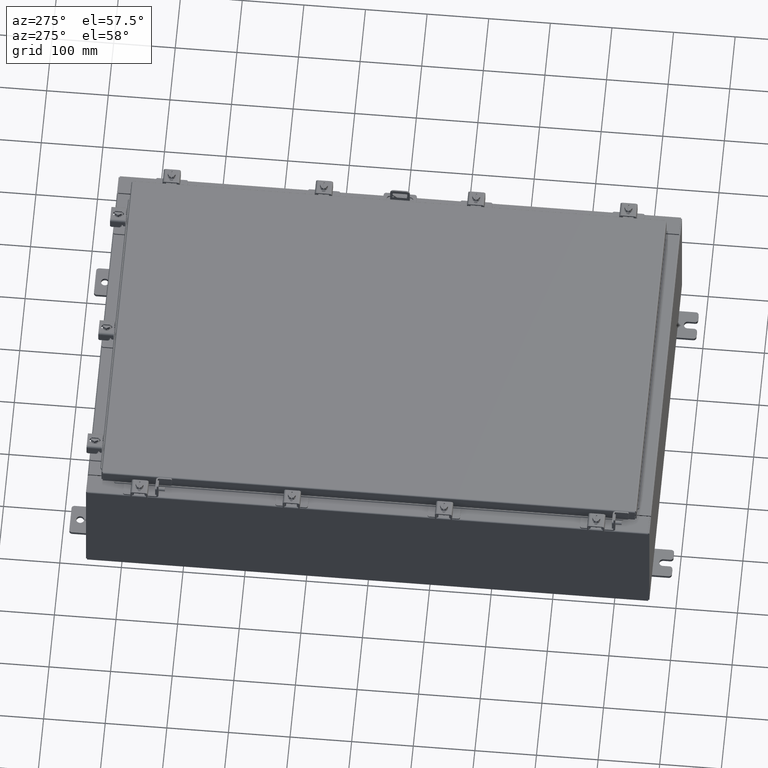
[diagram: clean part render]
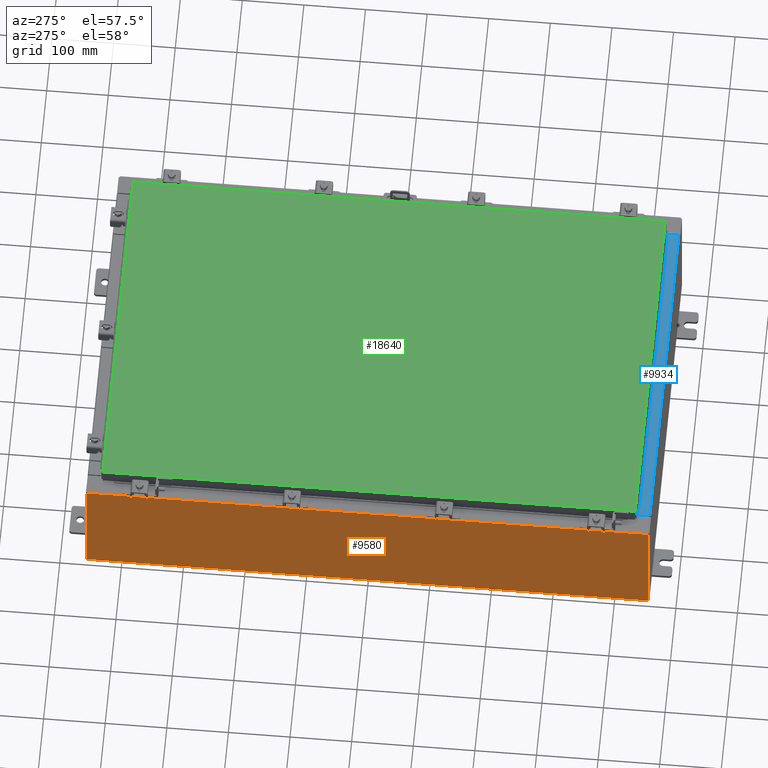
[diagram: same view with three faces highlighted in distinct colors, each labeled with its STEP entity id]
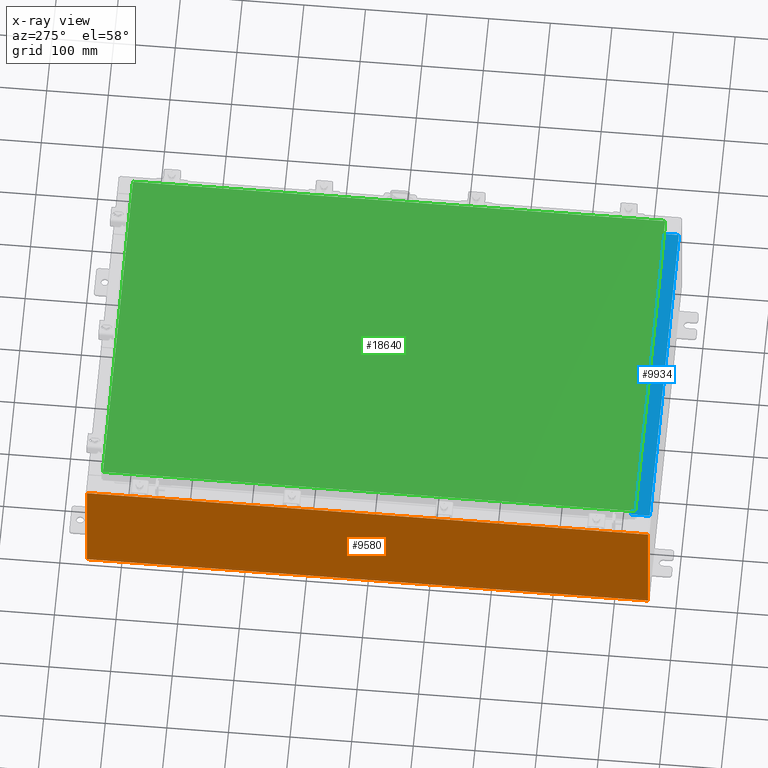
[diagram: x-ray of the same camera — body ghosted, the three highlighted faces saturated]
A machine part, auxiliary view with three faces highlighted in distinct colors.
The next image is the same camera in x-ray (body ghosted, the three faces saturated) — at least one of them is partly hidden behind the body in this view.
Their STEP definitions:

[orange] entity #9580 — the highlighted planar face has unit normal (1, 0, 0).
#1332 = LINE ( 'NONE', #18045, #19889 ) ;
#1352 = VERTEX_POINT ( 'NONE', #13521 ) ;
#1518 = CARTESIAN_POINT ( 'NONE',  ( -12.00000000000000200, 17.92529999999999600, 0.01299999999999983600 ) ) ;
#2291 = EDGE_CURVE ( 'NONE', #3297, #1352, #1332, .T. ) ;
#3007 = VECTOR ( 'NONE', #22389, 39.37007874015748100 ) ;
#3297 = VERTEX_POINT ( 'NONE', #10470 ) ;
#4617 = CARTESIAN_POINT ( 'NONE',  ( -12.00000000000000200, -17.92530000000000400, 0.01299999999999984700 ) ) ;
#5382 = EDGE_CURVE ( 'NONE', #13980, #18665, #23197, .T. ) ;
#6273 = VECTOR ( 'NONE', #11974, 39.37007874015748100 ) ;
#6885 = CARTESIAN_POINT ( 'NONE',  ( -12.00000000000000200, 0.0000000000000000000, -4.327932773236201900E-014 ) ) ;
#8705 = DIRECTION ( 'NONE',  ( 1.000000000000000000, 0.0000000000000000000, 3.584876173029202900E-015 ) ) ;
#9580 = ADVANCED_FACE ( 'NONE', ( #11149 ), #17740, .F. ) ;
#9755 = CARTESIAN_POINT ( 'NONE',  ( -12.00000000000000200, -17.92530000000000400, -4.327932773236201900E-014 ) ) ;
#10464 = LINE ( 'NONE', #22811, #6273 ) ;
#10470 = CARTESIAN_POINT ( 'NONE',  ( -12.00000000000003000, -17.92530000000000400, 7.837599999999999200 ) ) ;
#10954 = ORIENTED_EDGE ( 'NONE', *, *, #2291, .T. ) ;
#11149 = FACE_OUTER_BOUND ( 'NONE', #12030, .T. ) ;
#11548 = CARTESIAN_POINT ( 'NONE',  ( -12.00000000000000200, 17.92529999999999600, 0.01299999999999984700 ) ) ;
#11974 = DIRECTION ( 'NONE',  ( 3.584876173029202900E-015, 0.0000000000000000000, -1.000000000000000000 ) ) ;
#12030 = EDGE_LOOP ( 'NONE', ( #10954, #13000, #21645, #19859 ) ) ;
#12513 = AXIS2_PLACEMENT_3D ( 'NONE', #6885, #8705, #21328 ) ;
#13000 = ORIENTED_EDGE ( 'NONE', *, *, #14059, .T. ) ;
#13521 = CARTESIAN_POINT ( 'NONE',  ( -12.00000000000003000, 17.92529999999999600, 7.837599999999999200 ) ) ;
#13980 = VERTEX_POINT ( 'NONE', #4617 ) ;
#14059 = EDGE_CURVE ( 'NONE', #1352, #18665, #10464, .T. ) ;
#16404 = DIRECTION ( 'NONE',  ( 0.0000000000000000000, 1.000000000000000000, 0.0000000000000000000 ) ) ;
#17740 = PLANE ( 'NONE',  #12513 ) ;
#18045 = CARTESIAN_POINT ( 'NONE',  ( -12.00000000000003000, -17.92530000000000400, 7.837599999999999200 ) ) ;
#18115 = DIRECTION ( 'NONE',  ( -0.0000000000000000000, 1.000000000000000000, -0.0000000000000000000 ) ) ;
#18439 = VECTOR ( 'NONE', #18115, 39.37007874015748100 ) ;
#18665 = VERTEX_POINT ( 'NONE', #1518 ) ;
#19133 = EDGE_CURVE ( 'NONE', #13980, #3297, #22141, .T. ) ;
#19859 = ORIENTED_EDGE ( 'NONE', *, *, #19133, .T. ) ;
#19889 = VECTOR ( 'NONE', #16404, 39.37007874015748100 ) ;
#21328 = DIRECTION ( 'NONE',  ( 3.584876173029202900E-015, 0.0000000000000000000, -1.000000000000000000 ) ) ;
#21645 = ORIENTED_EDGE ( 'NONE', *, *, #5382, .F. ) ;
#22141 = LINE ( 'NONE', #9755, #3007 ) ;
#22389 = DIRECTION ( 'NONE',  ( -3.584876173029202900E-015, 0.0000000000000000000, 1.000000000000000000 ) ) ;
#22811 = CARTESIAN_POINT ( 'NONE',  ( -12.00000000000000200, 17.92529999999999600, -4.327932773236201900E-014 ) ) ;
#23197 = LINE ( 'NONE', #11548, #18439 ) ;

[blue] entity #9934 — the highlighted planar face has unit normal (-0, -0, 1).
#249 = FACE_OUTER_BOUND ( 'NONE', #6206, .T. ) ;
#538 = EDGE_CURVE ( 'NONE', #13210, #15963, #20790, .T. ) ;
#855 = AXIS2_PLACEMENT_3D ( 'NONE', #4323, #22343, #11509 ) ;
#1408 = CARTESIAN_POINT ( 'NONE',  ( 10.63720000000000400, -0.08769999999999965300, 4.000000000000000000 ) ) ;
#3482 = CARTESIAN_POINT ( 'NONE',  ( -10.63720000000000200, -0.07469999999999973900, 4.000000000000000000 ) ) ;
#4323 = CARTESIAN_POINT ( 'NONE',  ( 0.0000000000000000000, 1.425992975200418500E-014, 4.000000000000000000 ) ) ;
#4463 = CARTESIAN_POINT ( 'NONE',  ( 10.63720000000000400, -1.287299999999999900, 4.000000000000003600 ) ) ;
#5230 = ORIENTED_EDGE ( 'NONE', *, *, #18506, .F. ) ;
#6055 = VECTOR ( 'NONE', #15964, 39.37007874015748100 ) ;
#6116 = LINE ( 'NONE', #13296, #15712 ) ;
#6137 = DIRECTION ( 'NONE',  ( -1.000000000000000000, 2.568202152506545800E-017, -9.159187855938968600E-032 ) ) ;
#6206 = EDGE_LOOP ( 'NONE', ( #15726, #5230, #18965, #13253 ) ) ;
#6941 = VECTOR ( 'NONE', #17175, 39.37007874015748100 ) ;
#9232 = EDGE_CURVE ( 'NONE', #21336, #15963, #6116, .T. ) ;
#9668 = CARTESIAN_POINT ( 'NONE',  ( -10.63720000000000200, -1.287299999999999200, 4.000000000000004400 ) ) ;
#9934 = ADVANCED_FACE ( 'NONE', ( #249 ), #20552, .T. ) ;
#10824 = LINE ( 'NONE', #12291, #6055 ) ;
#11509 = DIRECTION ( 'NONE',  ( 0.0000000000000000000, -1.000000000000000000, 3.566381192773190000E-015 ) ) ;
#11743 = EDGE_CURVE ( 'NONE', #21336, #18886, #10824, .T. ) ;
#12291 = CARTESIAN_POINT ( 'NONE',  ( 10.63720000000000200, -1.300299999999999800, 4.000000000000004400 ) ) ;
#13210 = VERTEX_POINT ( 'NONE', #9668 ) ;
#13253 = ORIENTED_EDGE ( 'NONE', *, *, #9232, .T. ) ;
#13296 = CARTESIAN_POINT ( 'NONE',  ( -2.252313287748606700E-018, -0.08770000000000000000, 4.000000000000000900 ) ) ;
#14266 = VECTOR ( 'NONE', #17085, 39.37007874015748100 ) ;
#14591 = CARTESIAN_POINT ( 'NONE',  ( -10.63720000000000200, -0.08770000000000000000, 4.000000000000000000 ) ) ;
#15712 = VECTOR ( 'NONE', #6137, 39.37007874015748100 ) ;
#15726 = ORIENTED_EDGE ( 'NONE', *, *, #538, .F. ) ;
#15963 = VERTEX_POINT ( 'NONE', #14591 ) ;
#15964 = DIRECTION ( 'NONE',  ( -0.0000000000000000000, -1.000000000000000000, 3.566381192773190000E-015 ) ) ;
#17085 = DIRECTION ( 'NONE',  ( -1.000000000000000000, 0.0000000000000000000, 0.0000000000000000000 ) ) ;
#17175 = DIRECTION ( 'NONE',  ( -0.0000000000000000000, 1.000000000000000000, -3.566381192773190000E-015 ) ) ;
#18506 = EDGE_CURVE ( 'NONE', #18886, #13210, #18538, .T. ) ;
#18538 = LINE ( 'NONE', #4463, #14266 ) ;
#18886 = VERTEX_POINT ( 'NONE', #19980 ) ;
#18965 = ORIENTED_EDGE ( 'NONE', *, *, #11743, .F. ) ;
#19980 = CARTESIAN_POINT ( 'NONE',  ( 10.63720000000000200, -1.287299999999999900, 4.000000000000004400 ) ) ;
#20552 = PLANE ( 'NONE',  #855 ) ;
#20790 = LINE ( 'NONE', #3482, #6941 ) ;
#21336 = VERTEX_POINT ( 'NONE', #1408 ) ;
#22343 = DIRECTION ( 'NONE',  ( 0.0000000000000000000, 3.566381192773190000E-015, 1.000000000000000000 ) ) ;

[green] entity #18640 — the highlighted planar face has unit normal (0, 0, -1).
#354 = CARTESIAN_POINT ( 'NONE',  ( 10.99029999999999800, -17.00630000000000300, -1.297627796990525000E-015 ) ) ;
#415 = VERTEX_POINT ( 'NONE', #16560 ) ;
#753 = EDGE_CURVE ( 'NONE', #415, #6912, #12569, .T. ) ;
#1310 = VECTOR ( 'NONE', #2316, 39.37007874015748100 ) ;
#1445 = DIRECTION ( 'NONE',  ( -1.000000000000000000, 0.0000000000000000000, -0.0000000000000000000 ) ) ;
#2316 = DIRECTION ( 'NONE',  ( 0.0000000000000000000, -1.000000000000000000, 0.0000000000000000000 ) ) ;
#3747 = ORIENTED_EDGE ( 'NONE', *, *, #23070, .T. ) ;
#3987 = AXIS2_PLACEMENT_3D ( 'NONE', #19109, #12123, #1445 ) ;
#5812 = VERTEX_POINT ( 'NONE', #19847 ) ;
#5926 = VECTOR ( 'NONE', #13015, 39.37007874015748100 ) ;
#6652 = EDGE_CURVE ( 'NONE', #5812, #415, #11257, .T. ) ;
#6912 = VERTEX_POINT ( 'NONE', #16624 ) ;
#7865 = CARTESIAN_POINT ( 'NONE',  ( -10.99030000000000100, -17.00630000000000000, 8.878505979408856000E-016 ) ) ;
#8271 = PLANE ( 'NONE',  #3987 ) ;
#9070 = LINE ( 'NONE', #7865, #17581 ) ;
#9113 = DIRECTION ( 'NONE',  ( -1.000000000000000000, -0.0000000000000000000, -0.0000000000000000000 ) ) ;
#11257 = LINE ( 'NONE', #354, #5926 ) ;
#11407 = FACE_OUTER_BOUND ( 'NONE', #21776, .T. ) ;
#12123 = DIRECTION ( 'NONE',  ( 0.0000000000000000000, 0.0000000000000000000, -1.000000000000000000 ) ) ;
#12569 = LINE ( 'NONE', #14073, #21619 ) ;
#13015 = DIRECTION ( 'NONE',  ( 0.0000000000000000000, 1.000000000000000000, 0.0000000000000000000 ) ) ;
#14073 = CARTESIAN_POINT ( 'NONE',  ( 10.99029999999999800, 17.00630000000000000, -2.048885995248197400E-016 ) ) ;
#14370 = ORIENTED_EDGE ( 'NONE', *, *, #22307, .T. ) ;
#15621 = ORIENTED_EDGE ( 'NONE', *, *, #6652, .T. ) ;
#16560 = CARTESIAN_POINT ( 'NONE',  ( 10.99029999999999800, 17.00630000000000000, -2.048885995248197400E-016 ) ) ;
#16624 = CARTESIAN_POINT ( 'NONE',  ( -10.99030000000000500, 17.00630000000000000, -2.390366994456230300E-015 ) ) ;
#17581 = VECTOR ( 'NONE', #18711, 39.37007874015748100 ) ;
#18512 = CARTESIAN_POINT ( 'NONE',  ( -10.99030000000000500, 17.00630000000000000, -2.390366994456230300E-015 ) ) ;
#18640 = ADVANCED_FACE ( 'NONE', ( #11407 ), #8271, .F. ) ;
#18711 = DIRECTION ( 'NONE',  ( 1.000000000000000000, -0.0000000000000000000, -0.0000000000000000000 ) ) ;
#19109 = CARTESIAN_POINT ( 'NONE',  ( 0.0000000000000000000, 0.0000000000000000000, 0.0000000000000000000 ) ) ;
#19847 = CARTESIAN_POINT ( 'NONE',  ( 10.99029999999999800, -17.00630000000000300, -1.297627796990525000E-015 ) ) ;
#20426 = LINE ( 'NONE', #18512, #1310 ) ;
#21619 = VECTOR ( 'NONE', #9113, 39.37007874015748100 ) ;
#21776 = EDGE_LOOP ( 'NONE', ( #3747, #15621, #23101, #14370 ) ) ;
#22072 = CARTESIAN_POINT ( 'NONE',  ( -10.99030000000000100, -17.00630000000000000, 8.878505979408856000E-016 ) ) ;
#22307 = EDGE_CURVE ( 'NONE', #6912, #22967, #20426, .T. ) ;
#22967 = VERTEX_POINT ( 'NONE', #22072 ) ;
#23070 = EDGE_CURVE ( 'NONE', #22967, #5812, #9070, .T. ) ;
#23101 = ORIENTED_EDGE ( 'NONE', *, *, #753, .T. ) ;